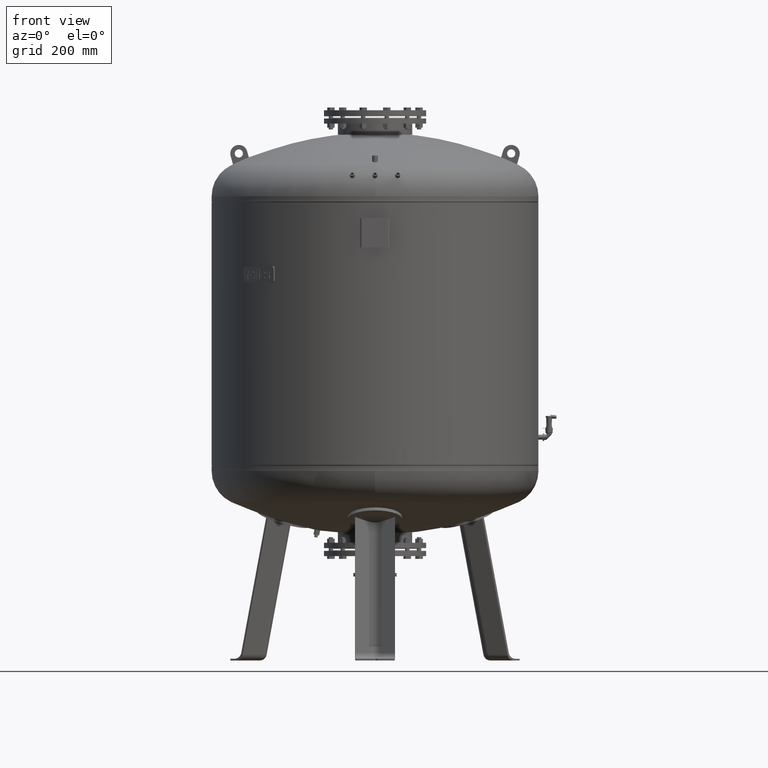
[diagram: clean part render]
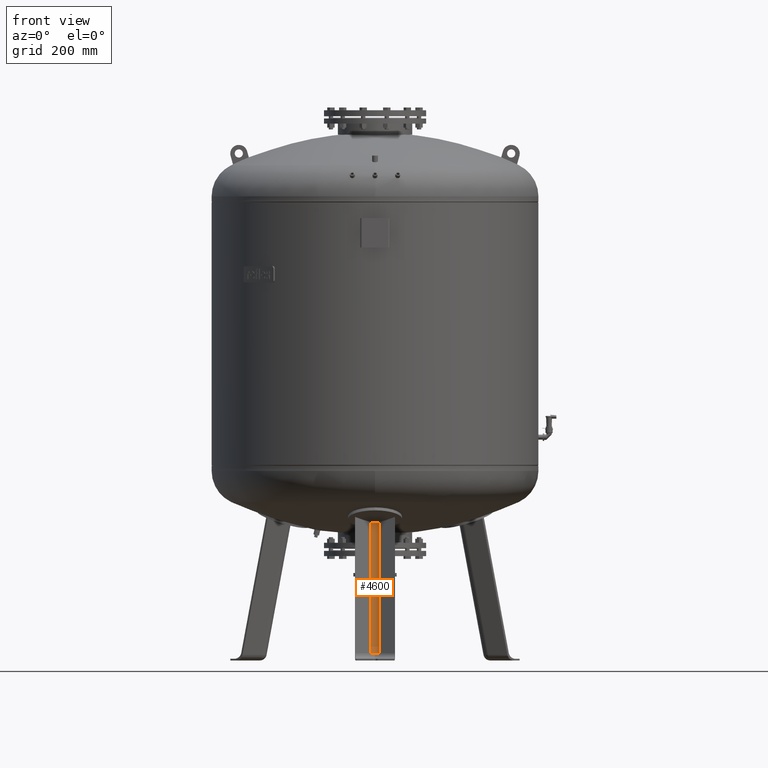
[diagram: same view with one face highlighted and labeled with its STEP entity id]
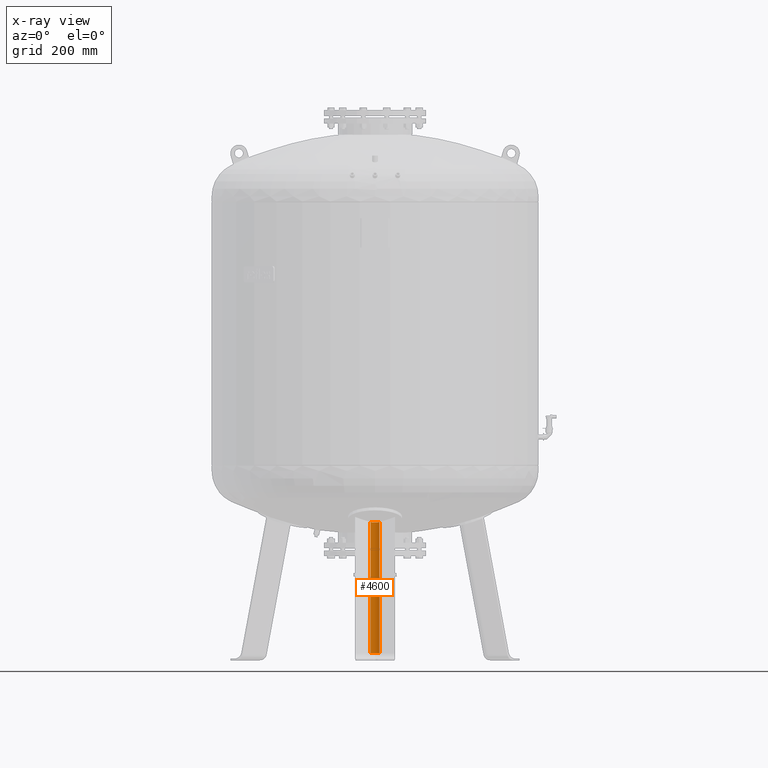
[diagram: x-ray of the same camera — body ghosted, the highlighted face saturated]
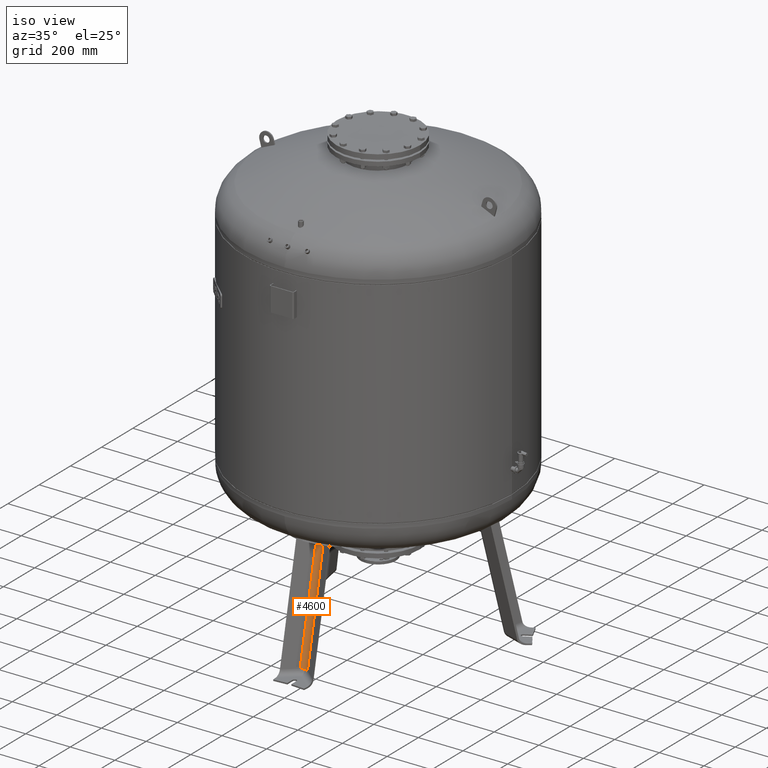
[diagram: same view with one face highlighted and labeled with its STEP entity id]
A machine part, front view. The second image highlights one B-rep face of the part: STEP entity #4600.
The next image is the same camera in x-ray: the body ghosted, the highlighted face saturated — about 0% of this face is hidden behind the body in this view.
A second angle (iso view) of the same face is appended — the face is thin or edge-on in the first view.
In plain terms, the highlighted cylindrical surface (edge-blend (fillet) strip) has radius 25 mm, axis along (0, 0.2079, 0.9781).
Its self-contained STEP definition (entity closure, byte-faithful):
#3751=CARTESIAN_POINT('',(3.814112E-014,-470.348646759664750,25.802207729556006));
#3752=VERTEX_POINT('',#3751);
#3762=CARTESIAN_POINT('',(-16.136450826554505,-476.124712592942840,27.029948423057292));
#3763=VERTEX_POINT('',#3762);
#3764=CARTESIAN_POINT('',(3.021794E-014,-494.802336778009870,30.999999999999996));
#3765=DIRECTION('',(1.795768E-016,0.207911690817760,0.978147600733806));
#3766=DIRECTION('',(3.134862E-016,0.978147600733806,-0.207911690817760));
#3767=AXIS2_PLACEMENT_3D('',#3764,#3765,#3766);
#3768=CIRCLE('',#3767,24.999999999999996);
#3769=EDGE_CURVE('',#3752,#3763,#3768,.T.);
#4061=CARTESIAN_POINT('',(16.136450826554576,-476.124712592942840,27.029948423057284));
#4062=VERTEX_POINT('',#4061);
#4151=CARTESIAN_POINT('',(3.021794E-014,-494.802336778009870,30.999999999999996));
#4152=DIRECTION('',(1.795768E-016,0.207911690817760,0.978147600733806));
#4153=DIRECTION('',(3.134862E-016,0.978147600733806,-0.207911690817760));
#4154=AXIS2_PLACEMENT_3D('',#4151,#4152,#4153);
#4155=CIRCLE('',#4154,24.999999999999996);
#4156=EDGE_CURVE('',#4062,#3752,#4155,.T.);
#4391=CARTESIAN_POINT('',(-16.136450826554402,-373.822192772864470,508.325463444113210));
#4392=VERTEX_POINT('',#4391);
#4400=CARTESIAN_POINT('',(16.136450826554661,-373.823303045940410,508.320240019970470));
#4401=VERTEX_POINT('',#4400);
#4402=CARTESIAN_POINT('',(16.136450826554661,-373.823303045940410,508.320240019970470));
#4403=CARTESIAN_POINT('',(15.917425305939714,-373.647014751298570,508.259372289933540));
#4404=CARTESIAN_POINT('',(15.695952439713579,-373.474914280727260,508.199952659748990));
#4405=CARTESIAN_POINT('',(14.586913015032827,-372.642616384653140,507.912602619461320));
#4406=CARTESIAN_POINT('',(13.669779852160106,-372.048163298794630,507.707401644527640));
#4407=CARTESIAN_POINT('',(11.848338885347227,-371.018875567778990,507.352151483820360));
#4408=CARTESIAN_POINT('',(10.866356499818522,-370.539218165504850,507.186631956602980));
#4409=CARTESIAN_POINT('',(8.802187212801522,-369.697989209095510,506.896409636033180));
#4410=CARTESIAN_POINT('',(7.719994848307462,-369.336429683015640,506.771710833648460));
#4411=CARTESIAN_POINT('',(5.513798001781595,-368.759645484505540,506.572869613931570));
#4412=CARTESIAN_POINT('',(4.388913979679063,-368.544193415049110,506.498648705277670));
#4413=CARTESIAN_POINT('',(2.160913920860796,-368.263727582201400,506.402164326406820));
#4414=CARTESIAN_POINT('',(1.057799081638127,-368.198705319538590,506.379897910233810));
#4415=CARTESIAN_POINT('',(-1.056459078413867,-368.198632636583740,506.380239856651490));
#4416=CARTESIAN_POINT('',(-2.158193197827700,-368.263414520093530,506.402806025775360));
#4417=CARTESIAN_POINT('',(-4.383474516183127,-368.543030120164470,506.499769920901030));
#4418=CARTESIAN_POINT('',(-5.507020497440985,-368.757872487493730,506.574170645728710));
#4419=CARTESIAN_POINT('',(-7.710696223964674,-369.333093625314520,506.773237798320680));
#4420=CARTESIAN_POINT('',(-8.791702362586984,-369.693698597350590,506.897982609829510));
#4421=CARTESIAN_POINT('',(-10.853737211046138,-370.532748427299340,507.188169031350010));
#4422=CARTESIAN_POINT('',(-11.834771451332275,-371.011181092939520,507.353606595328530));
#4423=CARTESIAN_POINT('',(-13.654608922278614,-372.037872143589990,507.708592610853430));
#4424=CARTESIAN_POINT('',(-14.571053363268190,-372.630860835443000,507.913606462838800));
#4425=CARTESIAN_POINT('',(-15.685135821871459,-373.465433571515350,508.202129029618390));
#4426=CARTESIAN_POINT('',(-15.912080570595853,-373.641618095140470,508.263037646980650));
#4427=CARTESIAN_POINT('',(-16.136450826554402,-373.822192772864470,508.325463444113210));
#4428=B_SPLINE_CURVE_WITH_KNOTS('',3,(#4402,#4403,#4404,#4405,#4406,#4407,#4408,#4409,#4410,#4411,#4412,#4413,#4414,#4415,#4416,#4417,#4418,#4419,#4420,#4421,#4422,#4423,#4424,#4425,#4426,#4427),.UNSPECIFIED.,.F.,.U.,(4,2,2,2,2,2,2,2,2,2,2,2,4),(34.351574704530236,35.157137084380075,38.350021909641775,41.523419197935439,44.696816486229096,47.870213774522753,51.043611062816417,54.212988341383024,57.382365619949638,60.551742898516245,63.721120177082852,66.909986527717621,67.735047143007677),.UNSPECIFIED.);
#4429=EDGE_CURVE('',#4401,#4392,#4428,.T.);
#4503=CARTESIAN_POINT('',(-16.136450826554402,-373.822192772864470,508.325463444113210));
#4504=DIRECTION('',(-2.093875E-016,-0.207911690817760,-0.978147600733806));
#4505=VECTOR('',#4504,492.047943132496980);
#4506=LINE('',#4503,#4505);
#4507=EDGE_CURVE('',#4392,#3763,#4506,.T.);
#4583=CARTESIAN_POINT('',(7.132107E-015,-505.880964659898610,-21.120846304840903));
#4584=DIRECTION('',(1.795768E-016,0.207911690817760,0.978147600733806));
#4585=DIRECTION('',(3.134862E-016,0.978147600733806,-0.207911690817760));
#4586=AXIS2_PLACEMENT_3D('',#4583,#4584,#4585);
#4587=CYLINDRICAL_SURFACE('',#4586,25.0);
#4588=ORIENTED_EDGE('',*,*,#4429,.T.);
#4589=ORIENTED_EDGE('',*,*,#4507,.T.);
#4590=ORIENTED_EDGE('',*,*,#3769,.F.);
#4591=ORIENTED_EDGE('',*,*,#4156,.F.);
#4592=CARTESIAN_POINT('',(16.136450826554576,-476.124712592942840,27.029948423057284));
#4593=DIRECTION('',(1.732881E-016,0.207911690817760,0.978147600733806));
#4594=VECTOR('',#4593,492.042603013951630);
#4595=LINE('',#4592,#4594);
#4596=EDGE_CURVE('',#4062,#4401,#4595,.T.);
#4597=ORIENTED_EDGE('',*,*,#4596,.T.);
#4598=EDGE_LOOP('',(#4588,#4589,#4590,#4591,#4597));
#4599=FACE_OUTER_BOUND('',#4598,.T.);
#4600=ADVANCED_FACE('',(#4599),#4587,.F.);